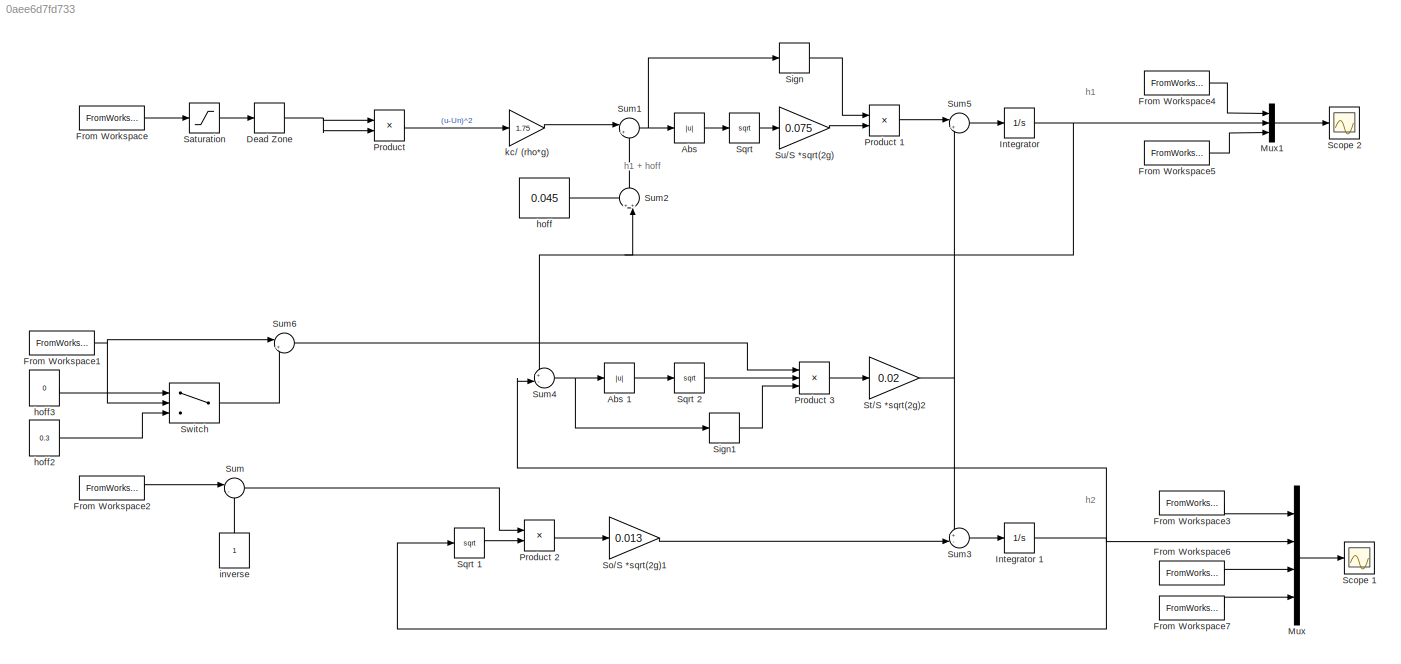
MODEL slx_0aee6d7fd733
KIND model
CONFIG AbsTol = auto
CONFIG EnableMultiTasking = off
CONFIG FixedStep = auto
CONFIG MaxStep = auto
CONFIG MinStep = auto
CONFIG RelTol = 1e-3
CONFIG SampleTimeConstraint = Unconstrained
CONFIG Solver = VariableStepAuto
CONFIG SolverName = VariableStepAuto
CONFIG StartTime = 0.0
CONFIG StopTime = 270
BLOCK [Constant]  hoff
  Value = 0.045
BLOCK [Constant]  hoff2
  Value = 0.3
BLOCK [Constant]  hoff3
  Value = 0
BLOCK [Constant]  inverse
BLOCK [Abs] Abs 
  SaturateOnIntegerOverflow = off
BLOCK [Abs] Abs 1
  SaturateOnIntegerOverflow = off
BLOCK [DeadZone] Dead Zone 
  LowerValue = 0
  UpperValue = 0.05
BLOCK [FromWorkspace] From Workspace
  SampleTime = 0
  VariableName = sim_u
  ZeroCross = on
BLOCK [FromWorkspace] From Workspace1
  SampleTime = 0
  VariableName = sim_vt
  ZeroCross = on
BLOCK [FromWorkspace] From Workspace2
  SampleTime = 0
  VariableName = sim_vo
  ZeroCross = on
BLOCK [FromWorkspace] From Workspace3
  SampleTime = 0
  VariableName = sim_h2
  ZeroCross = on
BLOCK [FromWorkspace] From Workspace4
  SampleTime = 0
  VariableName = sim_h1
  ZeroCross = on
BLOCK [FromWorkspace] From Workspace5
  SampleTime = 0
  VariableName = sim_u
  ZeroCross = on
BLOCK [FromWorkspace] From Workspace6
  SampleTime = 0
  VariableName = sim_vt
  ZeroCross = on
BLOCK [FromWorkspace] From Workspace7
  SampleTime = 0
  VariableName = sim_vo
  ZeroCross = on
BLOCK [Integrator] Integrator 
  InitialCondition = -0.045
  LimitOutput = on
  LowerSaturationLimit = -0.045
  Ports = [1, 1]
  UpperSaturationLimit = 0.71
BLOCK [Integrator] Integrator 1
  LimitOutput = on
  LowerSaturationLimit = 0
  Ports = [1, 1]
  UpperSaturationLimit = 0.71
BLOCK [Mux] Mux
  DisplayOption = bar
  Ports = [4, 1]
BLOCK [Mux] Mux1
  DisplayOption = bar
  Inputs = 3
  Ports = [3, 1]
BLOCK [Product] Product 
  InputSameDT = off
  OutDataTypeStr = Inherit: Inherit via internal rule
  Ports = [2, 1]
  RndMeth = Floor
  SaturateOnIntegerOverflow = off
BLOCK [Product] Product 1
  InputSameDT = off
  OutDataTypeStr = Inherit: Inherit via internal rule
  Ports = [2, 1]
  RndMeth = Floor
  SaturateOnIntegerOverflow = off
BLOCK [Product] Product 2
  InputSameDT = off
  OutDataTypeStr = Inherit: Inherit via internal rule
  Ports = [2, 1]
  RndMeth = Floor
  SaturateOnIntegerOverflow = off
BLOCK [Product] Product 3
  InputSameDT = off
  Inputs = 3
  OutDataTypeStr = Inherit: Inherit via internal rule
  Ports = [3, 1]
  RndMeth = Floor
  SaturateOnIntegerOverflow = off
BLOCK [Saturate] Saturation 
  InputPortMap = u0
  Ports = [1, 1]
  UpperLimit = 1
BLOCK [Scope] Scope 1
  NumInputPorts = 1
  Ports = [1]
  ScopeSpecificationString = Simulink.scopes.TimeScopeBlockCfg('CurrentConfiguration', extmgr.ConfigurationSet(extmgr.Configuration('Core','General UI',true),extmgr.Configuration('Core','Source UI',true),extmgr.Configuration('Sources','WiredSimulink',true,'DataLoggingVariableName','h2_nolinear','DataLogging',true,'DataLoggingSaveFormat','Array','SampleTime','0.1222'),extmgr.Configuration('Visuals','Time Domain',true,'Serializ...<+1570ch>
BLOCK [Scope] Scope 2
  NumInputPorts = 1
  Ports = [1]
  ScopeSpecificationString = Simulink.scopes.TimeScopeBlockCfg('CurrentConfiguration', extmgr.ConfigurationSet(extmgr.Configuration('Core','General UI',true),extmgr.Configuration('Core','Source UI',true),extmgr.Configuration('Sources','WiredSimulink',true,'DataLoggingVariableName','vypust_leva','DataLogging',true,'DataLoggingSaveFormat','Array','SampleTime','0.1222'),extmgr.Configuration('Visuals','Time Domain',true,'Serializ...<+1551ch>
BLOCK [Signum] Sign
BLOCK [Signum] Sign1
BLOCK [Gain] So//S *sqrt(2g)1
  Gain = 0.013
  OutDataTypeStr = Inherit: Inherit via internal rule
  ParamDataTypeStr = Inherit: Inherit via internal rule
  SaturateOnIntegerOverflow = off
BLOCK [Sqrt] Sqrt 
BLOCK [Sqrt] Sqrt 1
BLOCK [Sqrt] Sqrt 2
BLOCK [Gain] St//S *sqrt(2g)2
  Gain = 0.02
  OutDataTypeStr = Inherit: Inherit via internal rule
  ParamDataTypeStr = Inherit: Inherit via internal rule
  SaturateOnIntegerOverflow = off
BLOCK [Gain] Su//S *sqrt(2g)
  Gain = 0.075
  OutDataTypeStr = Inherit: Inherit via internal rule
  ParamDataTypeStr = Inherit: Inherit via internal rule
  SaturateOnIntegerOverflow = off
BLOCK [Sum] Sum
  IconShape = round
  InputSameDT = off
  Inputs = |-+
  OutDataTypeStr = Inherit: Inherit via internal rule
  Ports = [2, 1]
  SaturateOnIntegerOverflow = off
BLOCK [Sum] Sum1
  IconShape = round
  InputSameDT = off
  Inputs = |+-
  OutDataTypeStr = Inherit: Inherit via internal rule
  Ports = [2, 1]
  SaturateOnIntegerOverflow = off
BLOCK [Sum] Sum2
  IconShape = round
  InputSameDT = off
  Inputs = ++|
  OutDataTypeStr = Inherit: Inherit via internal rule
  Ports = [2, 1]
  SaturateOnIntegerOverflow = off
BLOCK [Sum] Sum3
  IconShape = round
  InputSameDT = off
  Inputs = +-|
  OutDataTypeStr = Inherit: Inherit via internal rule
  Ports = [2, 1]
  SaturateOnIntegerOverflow = off
BLOCK [Sum] Sum4
  IconShape = round
  InputSameDT = off
  Inputs = +-|
  OutDataTypeStr = Inherit: Inherit via internal rule
  Ports = [2, 1]
  SaturateOnIntegerOverflow = off
BLOCK [Sum] Sum5
  IconShape = round
  InputSameDT = off
  Inputs = |+-
  OutDataTypeStr = Inherit: Inherit via internal rule
  Ports = [2, 1]
  SaturateOnIntegerOverflow = off
BLOCK [Sum] Sum6
  IconShape = round
  InputSameDT = off
  Inputs = |++
  OutDataTypeStr = Inherit: Inherit via internal rule
  Ports = [2, 1]
  SaturateOnIntegerOverflow = off
BLOCK [Switch] Switch
  Criteria = u2 > Threshold
  InputSameDT = off
  SaturateOnIntegerOverflow = off
  Threshold = 0.5
BLOCK [Gain] kc// (rho*g)
  Gain = 1.75
  OutDataTypeStr = Inherit: Inherit via internal rule
  ParamDataTypeStr = Inherit: Inherit via internal rule
  SaturateOnIntegerOverflow = off
ANNOTATION (root): h1
ANNOTATION (root): h1 + hoff
ANNOTATION (root): h2
LINE  hoff2:1 -> Switch:3
LINE  hoff3:1 -> Switch:1
LINE  hoff:1 -> Sum2:1
LINE  inverse:1 -> Sum:2
LINE Abs 1:1 -> Sqrt 2:1
LINE Abs :1 -> Sqrt :1
NET Dead Zone :1 -> Product :1, Product :2
NET From Workspace1:1 -> Sum6:1, Switch:2
LINE From Workspace2:1 -> Sum:1
LINE From Workspace3:1 -> Mux:1
LINE From Workspace4:1 -> Mux1:1
LINE From Workspace5:1 -> Mux1:3
LINE From Workspace6:1 -> Mux:3
LINE From Workspace7:1 -> Mux:4
LINE From Workspace:1 -> Saturation :1
NET Integrator 1:1 -> Mux:2, Sqrt 1:1, Sum4:2
NET Integrator :1 -> Mux1:2, Sum2:2, Sum4:1
LINE Mux1:1 -> Scope 2:1
LINE Mux:1 -> Scope 1:1
LINE Product 1:1 -> Sum5:1
LINE Product 2:1 -> So//S *sqrt(2g)1:1
LINE Product 3:1 -> St//S *sqrt(2g)2:1
LINE Product :1 -> kc// (rho*g):1
LINE Saturation :1 -> Dead Zone :1
LINE Sign1:1 -> Product 3:3
LINE Sign:1 -> Product 1:1
LINE So//S *sqrt(2g)1:1 -> Sum3:2
LINE Sqrt 1:1 -> Product 2:2
LINE Sqrt 2:1 -> Product 3:2
LINE Sqrt :1 -> Su//S *sqrt(2g):1
NET St//S *sqrt(2g)2:1 -> Sum3:1, Sum5:2
LINE Su//S *sqrt(2g):1 -> Product 1:2
NET Sum1:1 -> Abs :1, Sign:1
LINE Sum2:1 -> Sum1:2
LINE Sum3:1 -> Integrator 1:1
NET Sum4:1 -> Abs 1:1, Sign1:1
LINE Sum5:1 -> Integrator :1
LINE Sum6:1 -> Product 3:1
LINE Sum:1 -> Product 2:1
LINE Switch:1 -> Sum6:2
LINE kc// (rho*g):1 -> Sum1:1
note: NET lines group one-source signal fan-out (src -> all destinations, sorted); 1:1 wires keep LINE
